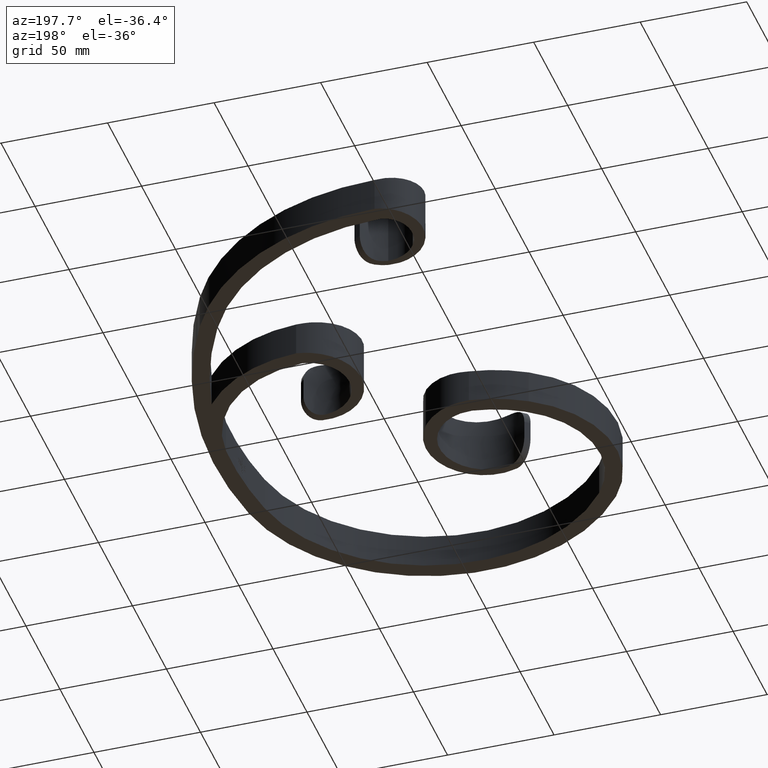
[diagram: clean part render]
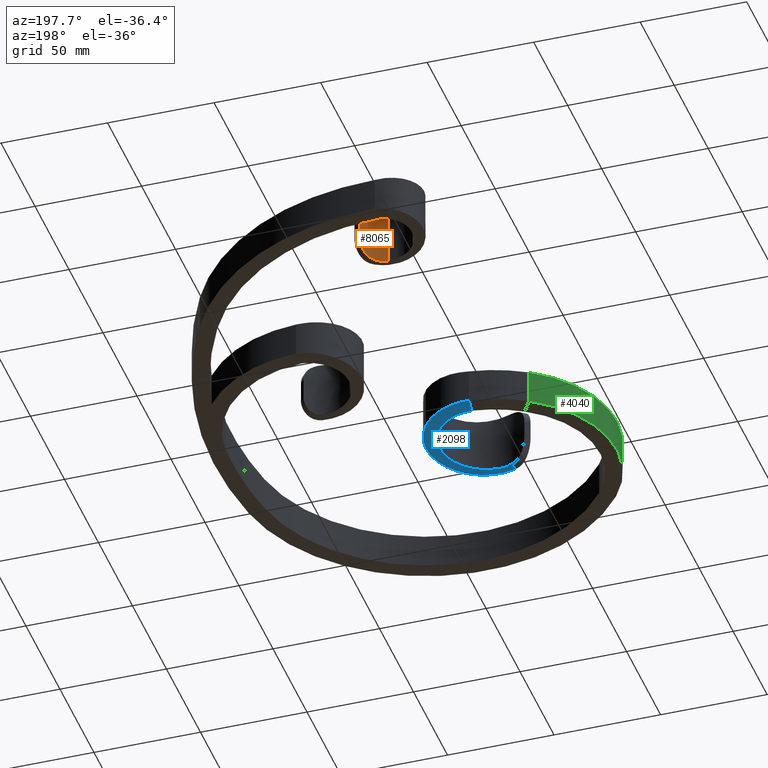
[diagram: same view with three faces highlighted in distinct colors, each labeled with its STEP entity id]
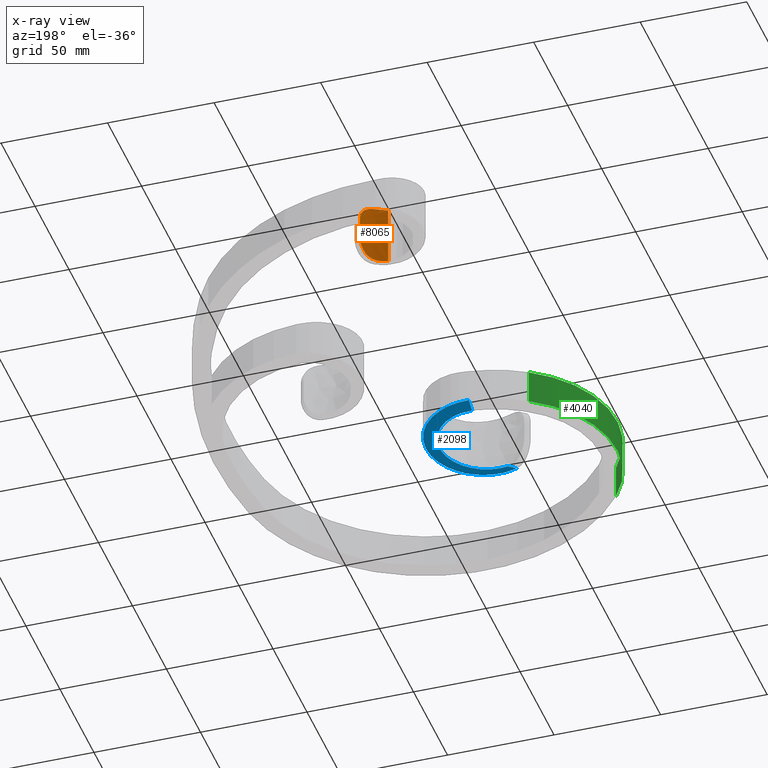
[diagram: x-ray of the same camera — body ghosted, the three highlighted faces saturated]
A machine part, auxiliary view with three faces highlighted in distinct colors.
The next image is the same camera in x-ray (body ghosted, the three faces saturated) — at least one of them is partly hidden behind the body in this view.
Their STEP definitions:

[orange] entity #8065 — the highlighted face is a freeform B-spline surface patch.
#125 = CARTESIAN_POINT ( 'NONE',  ( -27.85137373587073029, 111.0475000967558685, -12.96276446938073335 ) ) ;
#215 = CARTESIAN_POINT ( 'NONE',  ( -25.70329403040714666, 114.6642725896514889, -8.231674931948951723 ) ) ;
#296 = B_SPLINE_CURVE_WITH_KNOTS ( 'NONE', 3,
 ( #11209, #8011, #11168, #2817, #12283 ),
 .UNSPECIFIED., .F., .F.,
 ( 4, 1, 4 ),
 ( 0.7976637199139651191, 0.8134459948612429159, 1.000000000000000000 ),
 .UNSPECIFIED. ) ;
#391 = EDGE_CURVE ( 'NONE', #8171, #10612, #7516, .T. ) ;
#443 = CARTESIAN_POINT ( 'NONE',  ( -31.74029598162356081, 107.6614971573701922, -14.24499317834826151 ) ) ;
#639 = CARTESIAN_POINT ( 'NONE',  ( -25.64343501987353591, 114.8011187542535083, 7.908967468318352623 ) ) ;
#696 = CARTESIAN_POINT ( 'NONE',  ( -27.85023180113713437, 111.0061825093702765, -14.65554250154253602 ) ) ;
#743 = CARTESIAN_POINT ( 'NONE',  ( -26.16967463419079820, 113.5478317918463631, -14.86428702350212205 ) ) ;
#787 = CARTESIAN_POINT ( 'NONE',  ( -35.77810535829194549, 105.9690846718097106, 14.00000000000000000 ) ) ;
#944 = CARTESIAN_POINT ( 'NONE',  ( -35.77810535829194549, 105.9690846718097106, -14.00000000000000000 ) ) ;
#1101 = ORIENTED_EDGE ( 'NONE', *, *, #8046, .T. ) ;
#1223 = CARTESIAN_POINT ( 'NONE',  ( -25.88354676957060718, 114.2519626251104938, -9.207783919840752063 ) ) ;
#1273 = EDGE_CURVE ( 'NONE', #10022, #10612, #7303, .T. ) ;
#1367 = CARTESIAN_POINT ( 'NONE',  ( -32.36328211004534694, 107.2897819113635762, 14.25189826402964677 ) ) ;
#1387 = VERTEX_POINT ( 'NONE', #6462 ) ;
#1434 = EDGE_CURVE ( 'NONE', #3353, #8171, #2891, .T. ) ;
#1458 = CARTESIAN_POINT ( 'NONE',  ( -28.48960082268045468, 110.2936106087999519, 13.45637939227520619 ) ) ;
#1499 = CARTESIAN_POINT ( 'NONE',  ( -25.40461068821134916, 115.3696978501150880, 4.378096559707646662 ) ) ;
#1621 = EDGE_LOOP ( 'NONE', ( #1101, #7158, #1857, #10462, #8610, #9129 ) ) ;
#1655 = CARTESIAN_POINT ( 'NONE',  ( -35.77810535829194549, 105.9690846718097106, -14.00000000000000000 ) ) ;
#1741 = CARTESIAN_POINT ( 'NONE',  ( -25.75572458375059881, 114.5335814807172881, 14.93771669400470437 ) ) ;
#1822 = CARTESIAN_POINT ( 'NONE',  ( -25.40461068821134916, 115.3696978501150738, -15.00000000000000000 ) ) ;
#1857 = ORIENTED_EDGE ( 'NONE', *, *, #391, .T. ) ;
#2168 = CARTESIAN_POINT ( 'NONE',  ( -25.65076165952732268, 114.7869813240574359, -7.895632219244495431 ) ) ;
#2216 = CARTESIAN_POINT ( 'NONE',  ( -33.01376394164735473, 106.9770061876405265, -14.20242474735956506 ) ) ;
#2262 = CARTESIAN_POINT ( 'NONE',  ( -26.68974410910104211, 112.6948131972908698, -11.47639109397141866 ) ) ;
#2320 = CARTESIAN_POINT ( 'NONE',  ( -29.72619602845646725, 109.1163639239210426, 13.96445341305317278 ) ) ;
#2357 = CARTESIAN_POINT ( 'NONE',  ( -32.68810238229193743, 107.1335963104812379, -14.22719349846501835 ) ) ;
#2358 = CARTESIAN_POINT ( 'NONE',  ( -33.08281906775034287, 106.9438019288982957, -14.19717264074192720 ) ) ;
#2368 = CARTESIAN_POINT ( 'NONE',  ( -26.33338207350470483, 113.3237087923371718, 10.69363521416268092 ) ) ;
#2466 = CARTESIAN_POINT ( 'NONE',  ( -25.40461068821134916, 115.3696978501150738, 15.00000000000000000 ) ) ;
#2492 = CARTESIAN_POINT ( 'NONE',  ( -26.83734009027605794, 112.4592115503225926, 11.73419414015453555 ) ) ;
#2642 = CARTESIAN_POINT ( 'NONE',  ( -29.87718480508713625, 108.9661346465689462, -14.45769547159566848 ) ) ;
#2670 = CARTESIAN_POINT ( 'NONE',  ( -25.55534941295798390, 115.0113111080422499, 7.230601308081221035 ) ) ;
#2692 = CARTESIAN_POINT ( 'NONE',  ( -33.88992445906386308, 106.5516179270259016, -14.13571235638231016 ) ) ;
#2738 = CARTESIAN_POINT ( 'NONE',  ( -34.91155419377728464, 106.2364292206728322, 14.06228306859275357 ) ) ;
#2806 = CARTESIAN_POINT ( 'NONE',  ( -35.77810535829194549, 105.9690846718097106, -14.00000000000000000 ) ) ;
#2817 = CARTESIAN_POINT ( 'NONE',  ( -34.91155419377728464, 106.2364292206728322, 14.06228306859275357 ) ) ;
#2823 = DIRECTION ( 'NONE',  ( 0.000000000000000000, 0.000000000000000000, -1.000000000000000000 ) ) ;
#2891 = B_SPLINE_CURVE_WITH_KNOTS ( 'NONE', 3,
 ( #7533, #8500, #3180, #11620, #12718, #2168, #215, #1223, #4295, #11662, #6418, #2262, #12770, #8591, #3317, #10707, #125, #5453, #8690, #9918, #7757, #9784, #10841, #11897, #443, #10883, #2357, #5682 ),
 .UNSPECIFIED., .F., .F.,
 ( 4, 2, 2, 2, 2, 2, 2, 2, 2, 2, 2, 2, 2, 4 ),
 ( 0.000000000000000000, 0.002144276354444053616, 0.003216414531666081291, 0.004288552708888108966, 0.006432829063332165184, 0.007504967240554195028, 0.008577105417776224872, 0.009649243594998253848, 0.01072138177222028629, 0.01286565812666431476, 0.01393779630388634026, 0.01500993448110836750, 0.01608207265833039648, 0.01715421083555242199 ),
 .UNSPECIFIED. ) ;
#3180 = CARTESIAN_POINT ( 'NONE',  ( -25.43471496311197555, 115.2978285678308907, -5.814850264532032575 ) ) ;
#3317 = CARTESIAN_POINT ( 'NONE',  ( -27.29553560376588095, 111.7795631790366997, -12.38709619129341633 ) ) ;
#3353 = VERTEX_POINT ( 'NONE', #4171 ) ;
#3463 = LINE ( 'NONE', #2466, #8745 ) ;
#3521 = EDGE_CURVE ( 'NONE', #1387, #10022, #296, .T. ) ;
#3853 = CARTESIAN_POINT ( 'NONE',  ( -27.85023180113713437, 111.0061825093702765, 14.65554250154252713 ) ) ;
#3897 = CARTESIAN_POINT ( 'NONE',  ( -32.25792327869474008, 107.3423018062286474, -14.25993153641869249 ) ) ;
#4171 = CARTESIAN_POINT ( 'NONE',  ( -25.40461068821134916, 115.3696978501150880, -4.378096559707646662 ) ) ;
#4295 = CARTESIAN_POINT ( 'NONE',  ( -26.03292619926699203, 113.9166306710074963, -9.821299932001771538 ) ) ;
#4460 = FACE_OUTER_BOUND ( 'NONE', #1621, .T. ) ;
#4588 = CARTESIAN_POINT ( 'NONE',  ( -29.99715630453436788, 108.8890485368803951, 14.03613124317541150 ) ) ;
#4633 = CARTESIAN_POINT ( 'NONE',  ( -25.41221299664968214, 115.3515912532345027, 5.101361095695762238 ) ) ;
#4884 = CARTESIAN_POINT ( 'NONE',  ( -26.16967463419079820, 113.5478317918463631, 14.86428702350209541 ) ) ;
#5453 = CARTESIAN_POINT ( 'NONE',  ( -28.47239244250668833, 110.3125490190634537, -13.44554154836178128 ) ) ;
#5512 = CARTESIAN_POINT ( 'NONE',  ( -27.14244454990899058, 111.9988348779836542, 12.19018093784659129 ) ) ;
#5645 = CARTESIAN_POINT ( 'NONE',  ( -28.95404640935202067, 109.8108464247538052, 13.69960405636434508 ) ) ;
#5682 = CARTESIAN_POINT ( 'NONE',  ( -33.01376394164735473, 106.9770061876405265, -14.20242474735956506 ) ) ;
#5683 = B_SPLINE_SURFACE_WITH_KNOTS ( 'NONE', 1, 3, ( 
 ( #6995, #1741, #4884, #11173, #3853, #12241, #9071, #11132, #12289, #5859, #2738, #787 ),
 ( #1822, #5945, #743, #11215, #696, #12158, #2642, #8015, #3897, #2692, #6947, #1655 ) ),
 .UNSPECIFIED., .F., .F., .F.,
 ( 2, 2 ),
 ( 4, 1, 1, 1, 1, 1, 1, 1, 1, 4 ),
 ( 0.000000000000000000, 1.000000000000000000 ),
 ( 0.000000000000000000, 0.1865528510750215918, 0.2199387808154583401, 0.3733585892152905816, 0.4400513871264883914, 0.5599485736916660628, 0.6266411514099582414, 0.7800601665726420997, 0.8134459948612429159, 1.000000000000000000 ),
 .UNSPECIFIED. ) ;
#5741 = CARTESIAN_POINT ( 'NONE',  ( -25.44254748803657407, 115.2793670880855643, 5.820349204395591336 ) ) ;
#5859 = CARTESIAN_POINT ( 'NONE',  ( -33.88992445906386308, 106.5516179270259016, 14.13571235638235279 ) ) ;
#5945 = CARTESIAN_POINT ( 'NONE',  ( -25.75572458375059881, 114.5335814807172881, -14.93771669400471680 ) ) ;
#6418 = CARTESIAN_POINT ( 'NONE',  ( -26.44043523800289819, 113.1231280412134481, -10.95945850339084870 ) ) ;
#6462 = CARTESIAN_POINT ( 'NONE',  ( -33.01376394164743289, 106.9770061876404981, 14.20242474735956861 ) ) ;
#6524 = CARTESIAN_POINT ( 'NONE',  ( -26.69675474133926585, 112.6832483735465189, 11.48966859873653235 ) ) ;
#6651 = VECTOR ( 'NONE', #8179, 1000.000000000000000 ) ;
#6706 = CARTESIAN_POINT ( 'NONE',  ( -33.01376394164743289, 106.9770061876404981, 14.20242474735956861 ) ) ;
#6745 = CARTESIAN_POINT ( 'NONE',  ( -25.46535822998092868, 115.2250400651947047, 6.178438246847227866 ) ) ;
#6846 = CARTESIAN_POINT ( 'NONE',  ( -25.82523672270550819, 114.3853792092236290, 8.891289401557351368 ) ) ;
#6928 = CARTESIAN_POINT ( 'NONE',  ( -35.77810535829194549, 105.9690846718097106, 14.00000000000000000 ) ) ;
#6947 = CARTESIAN_POINT ( 'NONE',  ( -34.91155419377728464, 106.2364292206728322, -14.06228306859273403 ) ) ;
#6995 = CARTESIAN_POINT ( 'NONE',  ( -25.40461068821134916, 115.3696978501150738, 15.00000000000000000 ) ) ;
#7158 = ORIENTED_EDGE ( 'NONE', *, *, #1434, .T. ) ;
#7303 = LINE ( 'NONE', #2806, #6651 ) ;
#7516 = B_SPLINE_CURVE_WITH_KNOTS ( 'NONE', 3,
 ( #2216, #2358, #11760, #12771, #7675 ),
 .UNSPECIFIED., .F., .F.,
 ( 4, 1, 4 ),
 ( 0.7976637199139592349, 0.8134459948612429159, 1.000000000000000000 ),
 .UNSPECIFIED. ) ;
#7533 = CARTESIAN_POINT ( 'NONE',  ( -25.40461068821134916, 115.3696978501150880, -4.378096559707646662 ) ) ;
#7675 = CARTESIAN_POINT ( 'NONE',  ( -35.77810535829194549, 105.9690846718097106, -14.00000000000000000 ) ) ;
#7728 = CARTESIAN_POINT ( 'NONE',  ( -31.74173154806018360, 107.6459028230463986, 14.25929168628800880 ) ) ;
#7742 = CARTESIAN_POINT ( 'NONE',  ( -25.40461068821134916, 115.3696978501150880, 4.378096559707646662 ) ) ;
#7757 = CARTESIAN_POINT ( 'NONE',  ( -29.98956110622325966, 108.8953573874663476, -14.03419196257271828 ) ) ;
#7950 = VERTEX_POINT ( 'NONE', #7742 ) ;
#7996 = CARTESIAN_POINT ( 'NONE',  ( -25.89434224923097361, 114.2299148879916260, 9.212241057999346339 ) ) ;
#8011 = CARTESIAN_POINT ( 'NONE',  ( -33.08281906775038550, 106.9438019288982531, 14.19717264074193253 ) ) ;
#8015 = CARTESIAN_POINT ( 'NONE',  ( -31.19559270176846155, 107.9745629831508467, -14.34445761725937984 ) ) ;
#8046 = EDGE_CURVE ( 'NONE', #7950, #3353, #3463, .T. ) ;
#8065 = ADVANCED_FACE ( 'NONE', ( #4460 ), #5683, .T. ) ;
#8171 = VERTEX_POINT ( 'NONE', #11354 ) ;
#8179 = DIRECTION ( 'NONE',  ( -0.000000000000000000, -0.000000000000000000, -1.000000000000000000 ) ) ;
#8500 = CARTESIAN_POINT ( 'NONE',  ( -25.40461068821135271, 115.3696978501151023, -5.103090043346880655 ) ) ;
#8591 = CARTESIAN_POINT ( 'NONE',  ( -27.13096067456821459, 112.0155978865021922, -12.17454554398360855 ) ) ;
#8610 = ORIENTED_EDGE ( 'NONE', *, *, #3521, .F. ) ;
#8690 = CARTESIAN_POINT ( 'NONE',  ( -28.93663787772733897, 109.8274701636039197, -13.69237730764499439 ) ) ;
#8701 = CARTESIAN_POINT ( 'NONE',  ( -26.44349498288202582, 113.1174105992604808, 10.96701238492553543 ) ) ;
#8740 = CARTESIAN_POINT ( 'NONE',  ( -30.56157119768503705, 108.4498789298062889, 14.14710569443935029 ) ) ;
#8745 = VECTOR ( 'NONE', #2823, 1000.000000000000000 ) ;
#8831 = CARTESIAN_POINT ( 'NONE',  ( -27.66725664204263069, 111.2805344271001786, 12.79268733287789317 ) ) ;
#8962 = CARTESIAN_POINT ( 'NONE',  ( -25.40461068821135271, 115.3696978501151023, 4.740444180919342720 ) ) ;
#9071 = CARTESIAN_POINT ( 'NONE',  ( -29.87718480508713625, 108.9661346465689462, 14.45769547159565782 ) ) ;
#9129 = ORIENTED_EDGE ( 'NONE', *, *, #10305, .T. ) ;
#9751 = CARTESIAN_POINT ( 'NONE',  ( -26.13653291761063358, 113.7117281374639219, 10.12394258266084179 ) ) ;
#9784 = CARTESIAN_POINT ( 'NONE',  ( -30.54875225216163415, 108.4594685679401920, -14.14501519797507001 ) ) ;
#9918 = CARTESIAN_POINT ( 'NONE',  ( -29.71813260537057744, 109.1231485325895534, -13.96229545183417109 ) ) ;
#10022 = VERTEX_POINT ( 'NONE', #6928 ) ;
#10305 = EDGE_CURVE ( 'NONE', #1387, #7950, #11872, .T. ) ;
#10462 = ORIENTED_EDGE ( 'NONE', *, *, #1273, .F. ) ;
#10612 = VERTEX_POINT ( 'NONE', #944 ) ;
#10707 = CARTESIAN_POINT ( 'NONE',  ( -27.65560996494817303, 111.2955155626107313, -12.78140291236032411 ) ) ;
#10812 = CARTESIAN_POINT ( 'NONE',  ( -27.30772282430326925, 111.7625478029438142, 12.40181713335038260 ) ) ;
#10841 = CARTESIAN_POINT ( 'NONE',  ( -30.83738868931722976, 108.2506275114066483, -14.18422243490425672 ) ) ;
#10883 = CARTESIAN_POINT ( 'NONE',  ( -32.36860330102180683, 107.3023726473835495, -14.24142992640804728 ) ) ;
#11063 = CARTESIAN_POINT ( 'NONE',  ( -26.04984555162541682, 113.8934689819113260, 9.827624063292654810 ) ) ;
#11132 = CARTESIAN_POINT ( 'NONE',  ( -31.19559270176846155, 107.9745629831508467, 14.34445761725941182 ) ) ;
#11168 = CARTESIAN_POINT ( 'NONE',  ( -33.97169370136008126, 106.5263908405158872, 14.12983522005703740 ) ) ;
#11173 = CARTESIAN_POINT ( 'NONE',  ( -27.11674052452658756, 112.0013258651760566, 14.74006836725682845 ) ) ;
#11209 = CARTESIAN_POINT ( 'NONE',  ( -33.01376394164743289, 106.9770061876404981, 14.20242474735956861 ) ) ;
#11215 = CARTESIAN_POINT ( 'NONE',  ( -27.11674052452658756, 112.0013258651760566, -14.74006836725679115 ) ) ;
#11354 = CARTESIAN_POINT ( 'NONE',  ( -33.01376394164735473, 106.9770061876405265, -14.20242474735956506 ) ) ;
#11620 = CARTESIAN_POINT ( 'NONE',  ( -25.52372167480336174, 115.0864217367534224, -6.863384278948962525 ) ) ;
#11662 = CARTESIAN_POINT ( 'NONE',  ( -26.32934527828305349, 113.3313381301757801, -10.68330559975225746 ) ) ;
#11760 = CARTESIAN_POINT ( 'NONE',  ( -33.97169370136004574, 106.5263908405159015, -14.12983522005700010 ) ) ;
#11770 = CARTESIAN_POINT ( 'NONE',  ( -27.86298190477891623, 111.0330827725553746, 12.97299798939726045 ) ) ;
#11821 = CARTESIAN_POINT ( 'NONE',  ( -30.85118308208006965, 108.2409519085089613, 14.18580497920487105 ) ) ;
#11872 = B_SPLINE_CURVE_WITH_KNOTS ( 'NONE', 3,
 ( #6706, #1367, #7728, #11821, #8740, #4588, #2320, #5645, #1458, #11770, #8831, #10812, #5512, #2492, #6524, #8701, #2368, #9751, #11063, #7996, #6846, #639, #2670, #6745, #5741, #4633, #8962, #1499 ),
 .UNSPECIFIED., .F., .F.,
 ( 4, 2, 2, 2, 2, 2, 2, 2, 2, 2, 2, 2, 2, 4 ),
 ( 0.000000000000000000, 0.002145109568863749153, 0.003217664353295623513, 0.004290219137727498307, 0.006435328706591240087, 0.007507883491023110110, 0.008580438275454981001, 0.009652993059886851024, 0.01072554784431872105, 0.01179810262875059454, 0.01287065741318246456, 0.01501576698204620808, 0.01608832176647808157, 0.01716087655090995506 ),
 .UNSPECIFIED. ) ;
#11897 = CARTESIAN_POINT ( 'NONE',  ( -31.43272353051684220, 107.8519377585714949, -14.23421812597849545 ) ) ;
#12158 = CARTESIAN_POINT ( 'NONE',  ( -28.96643249243053830, 109.7914716738065835, -14.54230468746892768 ) ) ;
#12241 = CARTESIAN_POINT ( 'NONE',  ( -28.96643249243053830, 109.7914716738065835, 14.54230468746893479 ) ) ;
#12283 = CARTESIAN_POINT ( 'NONE',  ( -35.77810535829194549, 105.9690846718097106, 14.00000000000000000 ) ) ;
#12289 = CARTESIAN_POINT ( 'NONE',  ( -32.25792327869474008, 107.3423018062286474, 14.25993153641867117 ) ) ;
#12718 = CARTESIAN_POINT ( 'NONE',  ( -25.56076470592227778, 114.9985348563028822, -7.209683296164422828 ) ) ;
#12770 = CARTESIAN_POINT ( 'NONE',  ( -26.82836224837386396, 112.4733630538390798, -11.71914222560678631 ) ) ;
#12771 = CARTESIAN_POINT ( 'NONE',  ( -34.91155419377728464, 106.2364292206728322, -14.06228306859273403 ) ) ;

[blue] entity #2098 — the highlighted face is a freeform B-spline surface patch.
#231 = CARTESIAN_POINT ( 'NONE',  ( -29.07550928496544884, -58.20682230271975754, -13.25146469080638312 ) ) ;
#398 = CARTESIAN_POINT ( 'NONE',  ( -7.482887672515622590, -33.82559137967507468, -10.62652855248155248 ) ) ;
#412 = CARTESIAN_POINT ( 'NONE',  ( -15.26422494615222725, -30.08453702239135907, -10.18907638484308542 ) ) ;
#467 = EDGE_CURVE ( 'NONE', #5590, #12942, #11741, .T. ) ;
#487 = CARTESIAN_POINT ( 'NONE',  ( -33.57802503120093718, -12.59550692411791850, -8.146049056091735352 ) ) ;
#733 = CARTESIAN_POINT ( 'NONE',  ( -28.40687138129084843, -62.45132643619105295, -13.25146469080638312 ) ) ;
#778 = CARTESIAN_POINT ( 'NONE',  ( -34.70492020182244630, -20.64359685746702056, -8.000000000000001776 ) ) ;
#823 = CARTESIAN_POINT ( 'NONE',  ( -33.23098073124666740, -20.46027814127155509, -8.146049056091737128 ) ) ;
#868 = CARTESIAN_POINT ( 'NONE',  ( -35.74252970856243650, -12.71117184921621224, -7.999999999999998224 ) ) ;
#997 = CARTESIAN_POINT ( 'NONE',  ( -40.20997594984882539, -57.90096757965248031, -14.13673204535060357 ) ) ;
#1067 = EDGE_CURVE ( 'NONE', #10316, #4196, #11374, .T. ) ;
#1332 = CARTESIAN_POINT ( 'NONE',  ( -13.22582388354327065, -39.66370541905566682, -11.06405389463266964 ) ) ;
#1436 = B_SPLINE_CURVE_WITH_KNOTS ( 'NONE', 3,
 ( #4209, #12592, #2130, #9507, #5094, #6288, #13658, #12460, #6152, #7300, #6243, #997, #7347 ),
 .UNSPECIFIED., .F., .F.,
 ( 4, 3, 3, 3, 4 ),
 ( 1.551583845779545699E-17, 0.0004610982701216869090, 0.001531693076524900769, 0.002605339451397647044, 0.004146068643879986804 ),
 .UNSPECIFIED. ) ;
#1537 = CARTESIAN_POINT ( 'NONE',  ( -29.23358853215684050, -12.36335269155290284, -8.439188108444961145 ) ) ;
#1643 = ORIENTED_EDGE ( 'NONE', *, *, #467, .F. ) ;
#1735 = CARTESIAN_POINT ( 'NONE',  ( -12.09784961112606894, -52.41389592465711900, -11.93903229814728739 ) ) ;
#1775 = CARTESIAN_POINT ( 'NONE',  ( -45.16537072123652763, -55.47579727951173822, -14.56417106129098471 ) ) ;
#2098 = ADVANCED_FACE ( 'NONE', ( #8791 ), #13160, .T. ) ;
#2130 = CARTESIAN_POINT ( 'NONE',  ( -42.79256594688916238, -59.99224387365500633, -14.25062033480005574 ) ) ;
#2301 = EDGE_CURVE ( 'NONE', #5590, #4196, #1436, .T. ) ;
#2323 = CARTESIAN_POINT ( 'NONE',  ( -24.02224382459854723, -56.33980298009238652, -12.81401223314161797 ) ) ;
#2332 = ORIENTED_EDGE ( 'NONE', *, *, #13352, .T. ) ;
#2374 = CARTESIAN_POINT ( 'NONE',  ( -39.81100001741694427, -57.57825725776385895, -14.11585791899495845 ) ) ;
#2418 = CARTESIAN_POINT ( 'NONE',  ( -19.66940259056384477, -53.30426112673201544, -12.37648792760983696 ) ) ;
#2453 = CARTESIAN_POINT ( 'NONE',  ( -13.61387139015438841, -34.69849542777498641, -10.62652855248155426 ) ) ;
#2545 = CARTESIAN_POINT ( 'NONE',  ( -34.70492020182246051, -20.64359685746702056, -8.000000000000001776 ) ) ;
#2650 = CARTESIAN_POINT ( 'NONE',  ( -35.74252970856243650, -12.71117184921621757, -7.999999999999998224 ) ) ;
#2773 = CARTESIAN_POINT ( 'NONE',  ( -51.65111107797437029, -53.56969024216362385, -15.00000000000000000 ) ) ;
#2909 = CARTESIAN_POINT ( 'NONE',  ( -50.14052950395719677, -55.11539507971288998, -14.85438673154449951 ) ) ;
#2951 = CARTESIAN_POINT ( 'NONE',  ( -12.58456249546032701, -21.92146221588376775, -9.751548640448486793 ) ) ;
#3842 = CARTESIAN_POINT ( 'NONE',  ( -47.95387114484213953, -52.92244860642279747, -14.85438673154449596 ) ) ;
#4025 = CARTESIAN_POINT ( 'NONE',  ( -24.02224382459855079, -56.33980298009238652, -12.81401223314161797 ) ) ;
#4196 = VERTEX_POINT ( 'NONE', #5822 ) ;
#4209 = CARTESIAN_POINT ( 'NONE',  ( -43.03120126583587535, -60.18579818496609590, -14.25978458945053440 ) ) ;
#4491 = CARTESIAN_POINT ( 'NONE',  ( -34.93879334652178414, -62.65775861665424884, -13.68900597043120904 ) ) ;
#4542 = CARTESIAN_POINT ( 'NONE',  ( -22.91004152761001578, -14.12384657492264139, -8.876577550080872570 ) ) ;
#4554 = CARTESIAN_POINT ( 'NONE',  ( -16.31583682184577455, -49.29677767312561087, -11.93903229814728917 ) ) ;
#4592 = CARTESIAN_POINT ( 'NONE',  ( -33.23098073124667451, -20.46027814127155864, -8.146049056091737128 ) ) ;
#4721 = CARTESIAN_POINT ( 'NONE',  ( -35.74252970856243650, -12.71117184921621757, -7.999999999999998224 ) ) ;
#4810 = CARTESIAN_POINT ( 'NONE',  ( -43.03120126583587535, -60.18579818496609590, -14.25978458945053440 ) ) ;
#4876 = CARTESIAN_POINT ( 'NONE',  ( -14.11580252929574186, -44.64763500177925692, -11.50150815269346616 ) ) ;
#4958 = CARTESIAN_POINT ( 'NONE',  ( -17.24778867897662593, -17.34423786836315884, -9.314102502621468105 ) ) ;
#4998 = CARTESIAN_POINT ( 'NONE',  ( -47.12985301392313175, -58.19607426644882509, -14.56417106129098826 ) ) ;
#5094 = CARTESIAN_POINT ( 'NONE',  ( -42.39616619733791936, -59.67084192984643209, -14.23500791944516841 ) ) ;
#5590 = VERTEX_POINT ( 'NONE', #4810 ) ;
#5636 = CARTESIAN_POINT ( 'NONE',  ( -7.389778684455301061, -40.35461719440599637, -11.06405389463266609 ) ) ;
#5765 = DIRECTION ( 'NONE',  ( -0.1297011883424979972, 0.9915531260313507067, 4.336808689942013792E-16 ) ) ;
#5822 = CARTESIAN_POINT ( 'NONE',  ( -39.81100001741694427, -57.57825725776385895, -14.11585791899495845 ) ) ;
#5939 = CARTESIAN_POINT ( 'NONE',  ( -33.57802503120093718, -12.59550692411791495, -8.146049056091735352 ) ) ;
#5981 = CARTESIAN_POINT ( 'NONE',  ( -8.945702659626400433, -46.69526478340217324, -11.50150815269346616 ) ) ;
#6110 = CARTESIAN_POINT ( 'NONE',  ( -7.482887672515633248, -33.82559137967507468, -10.62652855248155248 ) ) ;
#6152 = CARTESIAN_POINT ( 'NONE',  ( -41.28596163027707888, -58.77158890668715685, -14.18765635336485964 ) ) ;
#6243 = CARTESIAN_POINT ( 'NONE',  ( -40.60899783956384823, -58.22370674783782363, -14.15631125897465736 ) ) ;
#6288 = CARTESIAN_POINT ( 'NONE',  ( -42.11904867785784745, -59.44627550309213859, -14.22366601223992966 ) ) ;
#6573 = CARTESIAN_POINT ( 'NONE',  ( -38.07842994710328099, -58.09171334449877833, -13.97350676284545123 ) ) ;
#6666 = CARTESIAN_POINT ( 'NONE',  ( -21.57967193668076078, -23.02316096975651050, -9.314102502621473434 ) ) ;
#6695 = CARTESIAN_POINT ( 'NONE',  ( -22.15981873790846635, -60.55987571485508880, -12.81401223314161797 ) ) ;
#6737 = CARTESIAN_POINT ( 'NONE',  ( -17.24778867897662593, -17.34423786836316239, -9.314102502621468105 ) ) ;
#6984 = CARTESIAN_POINT ( 'NONE',  ( -21.57967193668076078, -23.02316096975651050, -9.314102502621473434 ) ) ;
#7073 = CARTESIAN_POINT ( 'NONE',  ( -34.52734339642938011, -58.69820824656201808, -13.68900597043120904 ) ) ;
#7113 = CARTESIAN_POINT ( 'NONE',  ( -29.23358853215684050, -12.36335269155290106, -8.439188108444961145 ) ) ;
#7168 = CARTESIAN_POINT ( 'NONE',  ( -15.26422494615222725, -30.08453702239135907, -10.18907638484308720 ) ) ;
#7300 = CARTESIAN_POINT ( 'NONE',  ( -41.00795246019021789, -58.54658977619212123, -14.17478384260836322 ) ) ;
#7347 = CARTESIAN_POINT ( 'NONE',  ( -39.81100001741694427, -57.57825725776385895, -14.11585791899495845 ) ) ;
#7758 = CARTESIAN_POINT ( 'NONE',  ( -9.270810098169972591, -27.54592833835636156, -10.18907638484308364 ) ) ;
#7847 = CARTESIAN_POINT ( 'NONE',  ( -35.74252970856243650, -12.71117184921621757, -7.999999999999998224 ) ) ;
#8048 = CARTESIAN_POINT ( 'NONE',  ( -22.91004152761001578, -14.12384657492264495, -8.876577550080872570 ) ) ;
#8087 = CARTESIAN_POINT ( 'NONE',  ( -16.58922973311246096, -57.15209682906559152, -12.37648792760983874 ) ) ;
#8232 = CARTESIAN_POINT ( 'NONE',  ( -29.07550928496544884, -58.20682230271976465, -13.25146469080638312 ) ) ;
#8485 = EDGE_LOOP ( 'NONE', ( #1643, #8642, #10952, #2332 ) ) ;
#8642 = ORIENTED_EDGE ( 'NONE', *, *, #2301, .T. ) ;
#8706 = CARTESIAN_POINT ( 'NONE',  ( -17.97658352774491775, -26.10466313363268753, -9.751548640448486793 ) ) ;
#8733 = CARTESIAN_POINT ( 'NONE',  ( -28.40687138129084843, -62.45132643619107427, -13.25146469080638312 ) ) ;
#8744 = CARTESIAN_POINT ( 'NONE',  ( -25.76143867571564172, -21.00655770548453205, -8.876577550080872570 ) ) ;
#8791 = FACE_OUTER_BOUND ( 'NONE', #8485, .T. ) ;
#8888 = VECTOR ( 'NONE', #5765, 1000.000000000000227 ) ;
#9108 = CARTESIAN_POINT ( 'NONE',  ( -16.31583682184577810, -49.29677767312561087, -11.93903229814728384 ) ) ;
#9152 = CARTESIAN_POINT ( 'NONE',  ( -19.66940259056383766, -53.30426112673201544, -12.37648792760984051 ) ) ;
#9230 = CARTESIAN_POINT ( 'NONE',  ( -22.15981873790846635, -60.55987571485509591, -12.81401223314161797 ) ) ;
#9277 = CARTESIAN_POINT ( 'NONE',  ( -34.93879334652178414, -62.65775861665424884, -13.68900597043120904 ) ) ;
#9507 = CARTESIAN_POINT ( 'NONE',  ( -42.67323438636449140, -59.89548953525353170, -14.24592039770381113 ) ) ;
#9743 = CARTESIAN_POINT ( 'NONE',  ( -42.42558938902889309, -60.46293557177023104, -14.21490081822890694 ) ) ;
#9970 = CARTESIAN_POINT ( 'NONE',  ( -12.58456249546032701, -21.92146221588376775, -9.751548640448486793 ) ) ;
#10171 = CARTESIAN_POINT ( 'NONE',  ( -49.35297774861744813, -51.64132741310399410, -14.99999999999999645 ) ) ;
#10303 = CARTESIAN_POINT ( 'NONE',  ( -13.22582388354327065, -39.66370541905566682, -11.06405389463266609 ) ) ;
#10316 = VERTEX_POINT ( 'NONE', #2545 ) ;
#10350 = CARTESIAN_POINT ( 'NONE',  ( -39.98647558503611066, -57.76599736907487426, -14.12637287712169609 ) ) ;
#10720 = CARTESIAN_POINT ( 'NONE',  ( -30.27259653354800051, -20.09233413545479507, -8.439188108444962921 ) ) ;
#10751 = CARTESIAN_POINT ( 'NONE',  ( -43.03120126583587535, -60.18579818496609590, -14.25978458945053440 ) ) ;
#10769 = CARTESIAN_POINT ( 'NONE',  ( -34.48899517040246820, -58.69475183558993336, -13.68592830307300190 ) ) ;
#10804 = CARTESIAN_POINT ( 'NONE',  ( -39.80956800831937414, -61.53277959153942334, -14.02471870966516576 ) ) ;
#10894 = CARTESIAN_POINT ( 'NONE',  ( -14.11580252929574186, -44.64763500177925692, -11.50150815269346083 ) ) ;
#10952 = ORIENTED_EDGE ( 'NONE', *, *, #1067, .F. ) ;
#11207 = CARTESIAN_POINT ( 'NONE',  ( -17.97658352774491775, -26.10466313363268753, -9.751548640448486793 ) ) ;
#11257 = CARTESIAN_POINT ( 'NONE',  ( -7.389778684455300173, -40.35461719440599637, -11.06405389463266609 ) ) ;
#11374 = B_SPLINE_CURVE_WITH_KNOTS ( 'NONE', 3,
 ( #12970, #4592, #10720, #8744, #6666, #8706, #412, #2453, #1332, #10894, #4554, #2418, #2323, #231, #10769, #6573, #2374 ),
 .UNSPECIFIED., .F., .F.,
 ( 4, 1, 1, 1, 1, 1, 1, 1, 1, 1, 1, 1, 1, 1, 4 ),
 ( 0.000000000000000000, 0.05923877720492965598, 0.1188997688660825558, 0.1790010123612174597, 0.2395410590916096094, 0.3005136104810967046, 0.3619249937151706176, 0.4237690885038177813, 0.4860520383517736853, 0.5487678920852456788, 0.6119226195294057424, 0.6755104250688195311, 0.7395371190208348544, 0.8039970576400453650, 0.8675356217854370833 ),
 .UNSPECIFIED. ) ;
#11741 = B_SPLINE_CURVE_WITH_KNOTS ( 'NONE', 3,
 ( #10751, #9743, #10804, #4491, #8733, #6695, #13000, #12955, #13140, #5636, #398, #7758, #9970, #6737, #4542, #1537, #487, #7847 ),
 .UNSPECIFIED., .F., .F.,
 ( 4, 1, 1, 1, 1, 1, 1, 1, 1, 1, 1, 1, 1, 1, 1, 4 ),
 ( 0.1110290882674817847, 0.1311041039287538235, 0.1960029423599547460, 0.2604628809791652011, 0.3244895749311803579, 0.3880773804705942576, 0.4512321079147543212, 0.5139479616482263147, 0.5762309114961822187, 0.6380750062848293824, 0.6994863895189032954, 0.7604589409083903906, 0.8209989876387825403, 0.8811002311339174442, 0.9407612227950703510, 1.000000000000000000 ),
 .UNSPECIFIED. ) ;
#12231 = CARTESIAN_POINT ( 'NONE',  ( -25.76143867571563817, -21.00655770548453205, -8.876577550080874346 ) ) ;
#12320 = CARTESIAN_POINT ( 'NONE',  ( -9.270810098169969038, -27.54592833835636156, -10.18907638484308364 ) ) ;
#12364 = CARTESIAN_POINT ( 'NONE',  ( -13.61387139015438841, -34.69849542777498641, -10.62652855248155070 ) ) ;
#12460 = CARTESIAN_POINT ( 'NONE',  ( -41.56394679428373706, -58.99664896540944881, -14.19999157372707366 ) ) ;
#12592 = CARTESIAN_POINT ( 'NONE',  ( -42.91188846285744063, -60.08901327192748454, -14.25524053850417872 ) ) ;
#12942 = VERTEX_POINT ( 'NONE', #4721 ) ;
#12955 = CARTESIAN_POINT ( 'NONE',  ( -12.09784961112606894, -52.41389592465710479, -11.93903229814728739 ) ) ;
#12970 = CARTESIAN_POINT ( 'NONE',  ( -34.70492020182246051, -20.64359685746702056, -8.000000000000001776 ) ) ;
#13000 = CARTESIAN_POINT ( 'NONE',  ( -16.58922973311246807, -57.15209682906560573, -12.37648792760983874 ) ) ;
#13140 = CARTESIAN_POINT ( 'NONE',  ( -8.945702659626400433, -46.69526478340217324, -11.50150815269346616 ) ) ;
#13160 = B_SPLINE_SURFACE_WITH_KNOTS ( 'NONE', 1, 3, ( 
 ( #2773, #2909, #4998, #13386, #9277, #733, #9230, #8087, #1735, #5981, #11257, #6110, #12320, #2951, #4958, #8048, #7113, #5939, #868 ),
 ( #10171, #3842, #1775, #10350, #7073, #8232, #4025, #9152, #9108, #4876, #10303, #12364, #7168, #11207, #6984, #12231, #13440, #823, #778 ) ),
 .UNSPECIFIED., .F., .F., .F.,
 ( 2, 2 ),
 ( 4, 1, 1, 1, 1, 1, 1, 1, 1, 1, 1, 1, 1, 1, 1, 1, 4 ),
 ( 0.000000000000000000, 1.000000000000000000 ),
 ( 0.000000000000000000, 0.06578038003364708453, 0.1311041039287538235, 0.1960029423599547738, 0.2604628809791652011, 0.3244895749311803579, 0.3880773804705942576, 0.4512321079147543212, 0.5139479616482263147, 0.5762309114961822187, 0.6380750062848293824, 0.6994863895189032954, 0.7604589409083903906, 0.8209989876387825403, 0.8811002311339174442, 0.9407612227950703510, 1.000000000000000000 ),
 .UNSPECIFIED. ) ;
#13176 = LINE ( 'NONE', #2650, #8888 ) ;
#13352 = EDGE_CURVE ( 'NONE', #10316, #12942, #13176, .T. ) ;
#13386 = CARTESIAN_POINT ( 'NONE',  ( -41.28444365421606221, -61.19213476982351096, -14.12637287712170142 ) ) ;
#13440 = CARTESIAN_POINT ( 'NONE',  ( -30.27259653354800761, -20.09233413545479507, -8.439188108444961145 ) ) ;
#13658 = CARTESIAN_POINT ( 'NONE',  ( -41.84189271347574390, -59.22178216168808973, -14.21184563830246717 ) ) ;

[green] entity #4040 — the highlighted cylindrical surface (partial cylindrical patch) has radius 55 mm, axis along (-0, -0, -1).
#697 = FACE_OUTER_BOUND ( 'NONE', #4214, .T. ) ;
#1175 = ORIENTED_EDGE ( 'NONE', *, *, #9613, .F. ) ;
#1405 = AXIS2_PLACEMENT_3D ( 'NONE', #6030, #2865, #3929 ) ;
#1540 = VERTEX_POINT ( 'NONE', #5876 ) ;
#1853 = DIRECTION ( 'NONE',  ( -1.000000000000000000, 0.000000000000000000, 0.000000000000000000 ) ) ;
#2161 = DIRECTION ( 'NONE',  ( 0.000000000000000000, 0.000000000000000000, 1.000000000000000000 ) ) ;
#2167 = EDGE_CURVE ( 'NONE', #12137, #1540, #6801, .T. ) ;
#2210 = CARTESIAN_POINT ( 'NONE',  ( -76.36602517182549832, -101.7910791830759507, -7.999999999999998224 ) ) ;
#2553 = ORIENTED_EDGE ( 'NONE', *, *, #2630, .F. ) ;
#2567 = ORIENTED_EDGE ( 'NONE', *, *, #2167, .T. ) ;
#2630 = EDGE_CURVE ( 'NONE', #4172, #5568, #9423, .T. ) ;
#2846 = DIRECTION ( 'NONE',  ( -0.7975640940331909512, -0.6032342131452884670, 0.000000000000000000 ) ) ;
#2865 = DIRECTION ( 'NONE',  ( -0.000000000000000000, -0.000000000000000000, -1.000000000000000000 ) ) ;
#3929 = DIRECTION ( 'NONE',  ( -0.7975640940331909512, -0.6032342131452884670, 0.000000000000000000 ) ) ;
#4040 = ADVANCED_FACE ( 'NONE', ( #697 ), #8096, .T. ) ;
#4172 = VERTEX_POINT ( 'NONE', #2210 ) ;
#4214 = EDGE_LOOP ( 'NONE', ( #1175, #2553, #7330, #2567 ) ) ;
#5568 = VERTEX_POINT ( 'NONE', #7061 ) ;
#5876 = CARTESIAN_POINT ( 'NONE',  ( -61.03426143534956338, -21.59409576365619543, 7.999999999999998224 ) ) ;
#6030 = CARTESIAN_POINT ( 'NONE',  ( -32.49999999999999289, -68.61319746008510378, 7.999999999999998224 ) ) ;
#6433 = AXIS2_PLACEMENT_3D ( 'NONE', #13155, #6848, #1853 ) ;
#6638 = EDGE_CURVE ( 'NONE', #4172, #12137, #10733, .T. ) ;
#6801 = CIRCLE ( 'NONE', #1405, 55.00000000000000711 ) ;
#6848 = DIRECTION ( 'NONE',  ( -0.000000000000000000, -0.000000000000000000, -1.000000000000000000 ) ) ;
#7061 = CARTESIAN_POINT ( 'NONE',  ( -61.03426143534956338, -21.59409576365619543, -7.999999999999998224 ) ) ;
#7195 = CARTESIAN_POINT ( 'NONE',  ( -32.49999999999999289, -68.61319746008510378, -7.999999999999998224 ) ) ;
#7330 = ORIENTED_EDGE ( 'NONE', *, *, #6638, .T. ) ;
#7731 = LINE ( 'NONE', #12812, #12831 ) ;
#7933 = DIRECTION ( 'NONE',  ( 0.000000000000000000, 0.000000000000000000, 1.000000000000000000 ) ) ;
#8096 = CYLINDRICAL_SURFACE ( 'NONE', #6433, 55.00000000000000000 ) ;
#9341 = CARTESIAN_POINT ( 'NONE',  ( -76.36602517182549832, -101.7910791830759507, 7.999999999999998224 ) ) ;
#9423 = CIRCLE ( 'NONE', #12087, 55.00000000000000711 ) ;
#9613 = EDGE_CURVE ( 'NONE', #5568, #1540, #7731, .T. ) ;
#10196 = DIRECTION ( 'NONE',  ( -0.000000000000000000, -0.000000000000000000, -1.000000000000000000 ) ) ;
#10733 = LINE ( 'NONE', #12342, #12867 ) ;
#12087 = AXIS2_PLACEMENT_3D ( 'NONE', #7195, #10196, #2846 ) ;
#12137 = VERTEX_POINT ( 'NONE', #9341 ) ;
#12342 = CARTESIAN_POINT ( 'NONE',  ( -76.36602517182551253, -101.7910791830759649, -7.999999999999998224 ) ) ;
#12812 = CARTESIAN_POINT ( 'NONE',  ( -61.03426143534955628, -21.59409576365620254, -7.999999999999998224 ) ) ;
#12831 = VECTOR ( 'NONE', #2161, 1000.000000000000000 ) ;
#12867 = VECTOR ( 'NONE', #7933, 1000.000000000000000 ) ;
#13155 = CARTESIAN_POINT ( 'NONE',  ( -32.49999999999999289, -68.61319746008510378, 0.000000000000000000 ) ) ;